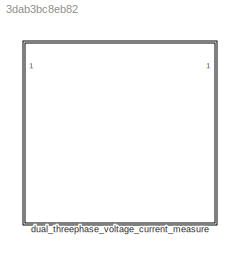
MODEL slx_3dab3bc8eb82
KIND library
CONFIG AbsTol = auto
CONFIG EnableMultiTasking = off
CONFIG FixedStep = auto
CONFIG MaxStep = auto
CONFIG MinStep = auto
CONFIG RelTol = 1e-3
CONFIG SampleTimeConstraint = Unconstrained
CONFIG SolverName = VariableStepAuto
CONFIG StartTime = 0.0
CONFIG StopTime = 10.0
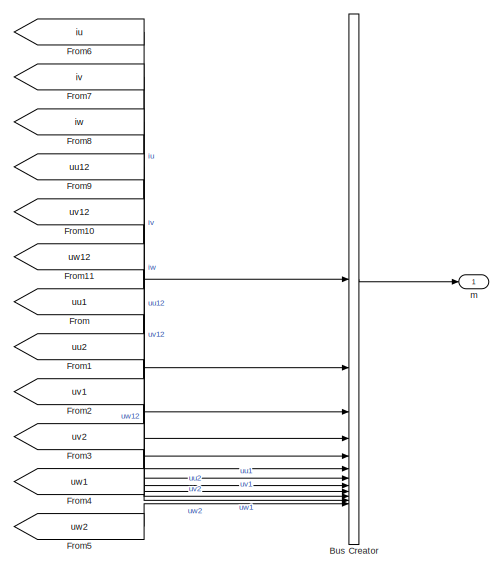
[diagram: dual_threephase_voltage_current_measure - part 1/3, top right region]
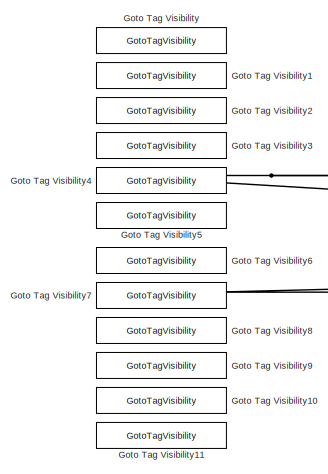
[diagram: dual_threephase_voltage_current_measure - part 2/3, top left region]
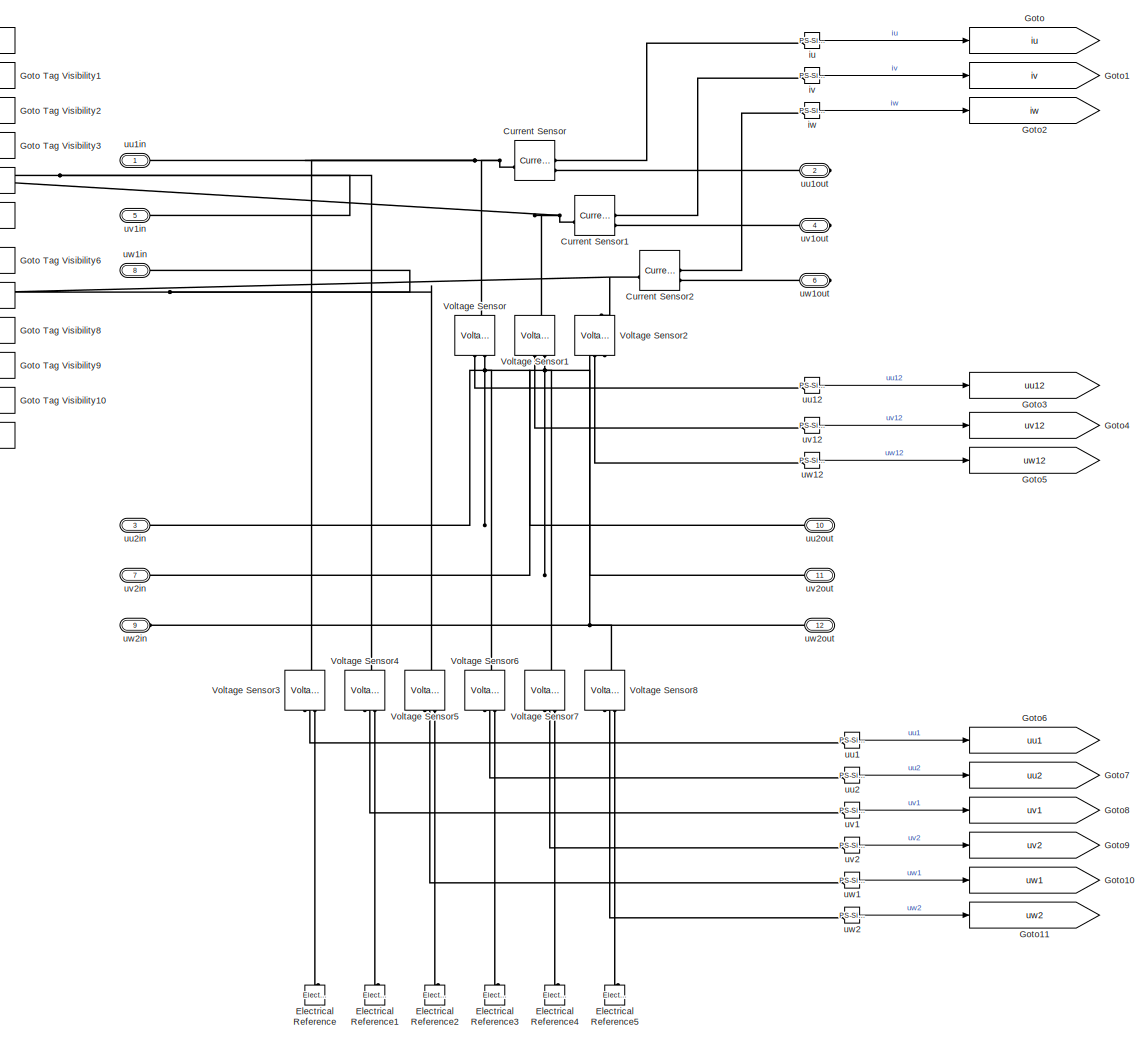
[diagram: dual_threephase_voltage_current_measure - part 3/3, center side, full height]
BLOCK [SubSystem] dual_threephase_voltage_current_measure
BLOCK [BusCreator] dual_threephase_voltage_current_measure/Bus Creator
  DisplayOption = bar
  InheritFromInputs = on
  Inputs = 12
BLOCK [Reference] dual_threephase_voltage_current_measure/Current Sensor  REF=fl_lib/Electrical/Electrical Sensors/Current Sensor
  SourceBlock = fl_lib/Electrical/Electrical Sensors/Current Sensor
  SourceType = Current Sensor
BLOCK [Reference] dual_threephase_voltage_current_measure/Current Sensor1  REF=fl_lib/Electrical/Electrical Sensors/Current Sensor
  SourceBlock = fl_lib/Electrical/Electrical Sensors/Current Sensor
  SourceType = Current Sensor
BLOCK [Reference] dual_threephase_voltage_current_measure/Current Sensor2  REF=fl_lib/Electrical/Electrical Sensors/Current Sensor
  SourceBlock = fl_lib/Electrical/Electrical Sensors/Current Sensor
  SourceType = Current Sensor
BLOCK [Reference] dual_threephase_voltage_current_measure/Electrical Reference  REF=fl_lib/Electrical/Electrical Elements/Electrical Reference
  NameLocation = right
  SourceBlock = fl_lib/Electrical/Electrical Elements/Electrical Reference
  SourceType = Electrical Reference
BLOCK [Reference] dual_threephase_voltage_current_measure/Electrical Reference1  REF=fl_lib/Electrical/Electrical Elements/Electrical Reference
  NameLocation = right
  SourceBlock = fl_lib/Electrical/Electrical Elements/Electrical Reference
  SourceType = Electrical Reference
BLOCK [Reference] dual_threephase_voltage_current_measure/Electrical Reference2  REF=fl_lib/Electrical/Electrical Elements/Electrical Reference
  NameLocation = right
  SourceBlock = fl_lib/Electrical/Electrical Elements/Electrical Reference
  SourceType = Electrical Reference
BLOCK [Reference] dual_threephase_voltage_current_measure/Electrical Reference3  REF=fl_lib/Electrical/Electrical Elements/Electrical Reference
  NameLocation = right
  SourceBlock = fl_lib/Electrical/Electrical Elements/Electrical Reference
  SourceType = Electrical Reference
BLOCK [Reference] dual_threephase_voltage_current_measure/Electrical Reference4  REF=fl_lib/Electrical/Electrical Elements/Electrical Reference
  NameLocation = right
  SourceBlock = fl_lib/Electrical/Electrical Elements/Electrical Reference
  SourceType = Electrical Reference
BLOCK [Reference] dual_threephase_voltage_current_measure/Electrical Reference5  REF=fl_lib/Electrical/Electrical Elements/Electrical Reference
  NameLocation = right
  SourceBlock = fl_lib/Electrical/Electrical Elements/Electrical Reference
  SourceType = Electrical Reference
BLOCK [From] dual_threephase_voltage_current_measure/From
  GotoTag = uu1
  TagVisibility = scoped
BLOCK [From] dual_threephase_voltage_current_measure/From1
  GotoTag = uu2
  TagVisibility = scoped
BLOCK [From] dual_threephase_voltage_current_measure/From10
  GotoTag = uv12
  TagVisibility = scoped
BLOCK [From] dual_threephase_voltage_current_measure/From11
  GotoTag = uw12
  TagVisibility = scoped
BLOCK [From] dual_threephase_voltage_current_measure/From2
  GotoTag = uv1
  TagVisibility = scoped
BLOCK [From] dual_threephase_voltage_current_measure/From3
  GotoTag = uv2
  TagVisibility = scoped
BLOCK [From] dual_threephase_voltage_current_measure/From4
  GotoTag = uw1
  TagVisibility = scoped
BLOCK [From] dual_threephase_voltage_current_measure/From5
  GotoTag = uw2
  TagVisibility = scoped
BLOCK [From] dual_threephase_voltage_current_measure/From6
  GotoTag = iu
  TagVisibility = scoped
BLOCK [From] dual_threephase_voltage_current_measure/From7
  GotoTag = iv
  TagVisibility = scoped
BLOCK [From] dual_threephase_voltage_current_measure/From8
  GotoTag = iw
  TagVisibility = scoped
BLOCK [From] dual_threephase_voltage_current_measure/From9
  GotoTag = uu12
  TagVisibility = scoped
BLOCK [Goto] dual_threephase_voltage_current_measure/Goto
  GotoTag = iu
  TagVisibility = scoped
BLOCK [GotoTagVisibility] dual_threephase_voltage_current_measure/Goto Tag Visibility
  GotoTag = iu
BLOCK [GotoTagVisibility] dual_threephase_voltage_current_measure/Goto Tag Visibility1
  GotoTag = iv
BLOCK [GotoTagVisibility] dual_threephase_voltage_current_measure/Goto Tag Visibility10
  GotoTag = uw1
BLOCK [GotoTagVisibility] dual_threephase_voltage_current_measure/Goto Tag Visibility11
  GotoTag = uw2
BLOCK [GotoTagVisibility] dual_threephase_voltage_current_measure/Goto Tag Visibility2
  GotoTag = iw
BLOCK [GotoTagVisibility] dual_threephase_voltage_current_measure/Goto Tag Visibility3
  GotoTag = uw12
BLOCK [GotoTagVisibility] dual_threephase_voltage_current_measure/Goto Tag Visibility4
  GotoTag = uv12
BLOCK [GotoTagVisibility] dual_threephase_voltage_current_measure/Goto Tag Visibility5
  GotoTag = uu12
BLOCK [GotoTagVisibility] dual_threephase_voltage_current_measure/Goto Tag Visibility6
  GotoTag = uu1
BLOCK [GotoTagVisibility] dual_threephase_voltage_current_measure/Goto Tag Visibility7
  GotoTag = uu2
BLOCK [GotoTagVisibility] dual_threephase_voltage_current_measure/Goto Tag Visibility8
  GotoTag = uv1
BLOCK [GotoTagVisibility] dual_threephase_voltage_current_measure/Goto Tag Visibility9
  GotoTag = uv2
BLOCK [Goto] dual_threephase_voltage_current_measure/Goto1
  GotoTag = iv
  TagVisibility = scoped
BLOCK [Goto] dual_threephase_voltage_current_measure/Goto10
  GotoTag = uw1
  TagVisibility = scoped
BLOCK [Goto] dual_threephase_voltage_current_measure/Goto11
  GotoTag = uw2
  TagVisibility = scoped
BLOCK [Goto] dual_threephase_voltage_current_measure/Goto2
  GotoTag = iw
  TagVisibility = scoped
BLOCK [Goto] dual_threephase_voltage_current_measure/Goto3
  GotoTag = uu12
  TagVisibility = scoped
BLOCK [Goto] dual_threephase_voltage_current_measure/Goto4
  GotoTag = uv12
  TagVisibility = scoped
BLOCK [Goto] dual_threephase_voltage_current_measure/Goto5
  GotoTag = uw12
  TagVisibility = scoped
BLOCK [Goto] dual_threephase_voltage_current_measure/Goto6
  GotoTag = uu1
  TagVisibility = scoped
BLOCK [Goto] dual_threephase_voltage_current_measure/Goto7
  GotoTag = uu2
  TagVisibility = scoped
BLOCK [Goto] dual_threephase_voltage_current_measure/Goto8
  GotoTag = uv1
  TagVisibility = scoped
BLOCK [Goto] dual_threephase_voltage_current_measure/Goto9
  GotoTag = uv2
  TagVisibility = scoped
BLOCK [Reference] dual_threephase_voltage_current_measure/Voltage Sensor  REF=fl_lib/Electrical/Electrical Sensors/Voltage Sensor
  NameLocation = right
  SourceBlock = fl_lib/Electrical/Electrical Sensors/Voltage Sensor
  SourceType = Voltage Sensor
BLOCK [Reference] dual_threephase_voltage_current_measure/Voltage Sensor1  REF=fl_lib/Electrical/Electrical Sensors/Voltage Sensor
  NameLocation = right
  SourceBlock = fl_lib/Electrical/Electrical Sensors/Voltage Sensor
  SourceType = Voltage Sensor
BLOCK [Reference] dual_threephase_voltage_current_measure/Voltage Sensor2  REF=fl_lib/Electrical/Electrical Sensors/Voltage Sensor
  NameLocation = right
  SourceBlock = fl_lib/Electrical/Electrical Sensors/Voltage Sensor
  SourceType = Voltage Sensor
BLOCK [Reference] dual_threephase_voltage_current_measure/Voltage Sensor3  REF=fl_lib/Electrical/Electrical Sensors/Voltage Sensor
  NameLocation = right
  SourceBlock = fl_lib/Electrical/Electrical Sensors/Voltage Sensor
  SourceType = Voltage Sensor
BLOCK [Reference] dual_threephase_voltage_current_measure/Voltage Sensor4  REF=fl_lib/Electrical/Electrical Sensors/Voltage Sensor
  NameLocation = right
  SourceBlock = fl_lib/Electrical/Electrical Sensors/Voltage Sensor
  SourceType = Voltage Sensor
BLOCK [Reference] dual_threephase_voltage_current_measure/Voltage Sensor5  REF=fl_lib/Electrical/Electrical Sensors/Voltage Sensor
  NameLocation = right
  SourceBlock = fl_lib/Electrical/Electrical Sensors/Voltage Sensor
  SourceType = Voltage Sensor
BLOCK [Reference] dual_threephase_voltage_current_measure/Voltage Sensor6  REF=fl_lib/Electrical/Electrical Sensors/Voltage Sensor
  NameLocation = right
  SourceBlock = fl_lib/Electrical/Electrical Sensors/Voltage Sensor
  SourceType = Voltage Sensor
BLOCK [Reference] dual_threephase_voltage_current_measure/Voltage Sensor7  REF=fl_lib/Electrical/Electrical Sensors/Voltage Sensor
  NameLocation = right
  SourceBlock = fl_lib/Electrical/Electrical Sensors/Voltage Sensor
  SourceType = Voltage Sensor
BLOCK [Reference] dual_threephase_voltage_current_measure/Voltage Sensor8  REF=fl_lib/Electrical/Electrical Sensors/Voltage Sensor
  NameLocation = right
  SourceBlock = fl_lib/Electrical/Electrical Sensors/Voltage Sensor
  SourceType = Voltage Sensor
BLOCK [Reference] dual_threephase_voltage_current_measure/iu  REF=nesl_utility/PS-Simulink
Converter
  SourceBlock = nesl_utility/PS-Simulink\nConverter
  SourceType = PS-Simulink\nConverter
BLOCK [Reference] dual_threephase_voltage_current_measure/iv  REF=nesl_utility/PS-Simulink
Converter
  SourceBlock = nesl_utility/PS-Simulink\nConverter
  SourceType = PS-Simulink\nConverter
BLOCK [Reference] dual_threephase_voltage_current_measure/iw  REF=nesl_utility/PS-Simulink
Converter
  SourceBlock = nesl_utility/PS-Simulink\nConverter
  SourceType = PS-Simulink\nConverter
BLOCK [Outport] dual_threephase_voltage_current_measure/m
BLOCK [Reference] dual_threephase_voltage_current_measure/uu1  REF=nesl_utility/PS-Simulink
Converter
  SourceBlock = nesl_utility/PS-Simulink\nConverter
  SourceType = PS-Simulink\nConverter
BLOCK [Reference] dual_threephase_voltage_current_measure/uu12  REF=nesl_utility/PS-Simulink
Converter
  SourceBlock = nesl_utility/PS-Simulink\nConverter
  SourceType = PS-Simulink\nConverter
BLOCK [PMIOPort] dual_threephase_voltage_current_measure/uu1in
  Side = Left
BLOCK [PMIOPort] dual_threephase_voltage_current_measure/uu1out
  Port = 2
  Side = Right
BLOCK [Reference] dual_threephase_voltage_current_measure/uu2  REF=nesl_utility/PS-Simulink
Converter
  SourceBlock = nesl_utility/PS-Simulink\nConverter
  SourceType = PS-Simulink\nConverter
BLOCK [PMIOPort] dual_threephase_voltage_current_measure/uu2in
  Port = 3
  Side = Left
BLOCK [PMIOPort] dual_threephase_voltage_current_measure/uu2out
  Port = 10
  Side = Right
BLOCK [Reference] dual_threephase_voltage_current_measure/uv1  REF=nesl_utility/PS-Simulink
Converter
  SourceBlock = nesl_utility/PS-Simulink\nConverter
  SourceType = PS-Simulink\nConverter
BLOCK [Reference] dual_threephase_voltage_current_measure/uv12  REF=nesl_utility/PS-Simulink
Converter
  SourceBlock = nesl_utility/PS-Simulink\nConverter
  SourceType = PS-Simulink\nConverter
BLOCK [PMIOPort] dual_threephase_voltage_current_measure/uv1in
  Port = 5
  Side = Left
BLOCK [PMIOPort] dual_threephase_voltage_current_measure/uv1out
  Port = 4
  Side = Right
BLOCK [Reference] dual_threephase_voltage_current_measure/uv2  REF=nesl_utility/PS-Simulink
Converter
  SourceBlock = nesl_utility/PS-Simulink\nConverter
  SourceType = PS-Simulink\nConverter
BLOCK [PMIOPort] dual_threephase_voltage_current_measure/uv2in
  Port = 7
  Side = Left
BLOCK [PMIOPort] dual_threephase_voltage_current_measure/uv2out
  Port = 11
  Side = Right
BLOCK [Reference] dual_threephase_voltage_current_measure/uw1  REF=nesl_utility/PS-Simulink
Converter
  SourceBlock = nesl_utility/PS-Simulink\nConverter
  SourceType = PS-Simulink\nConverter
BLOCK [Reference] dual_threephase_voltage_current_measure/uw12  REF=nesl_utility/PS-Simulink
Converter
  SourceBlock = nesl_utility/PS-Simulink\nConverter
  SourceType = PS-Simulink\nConverter
BLOCK [PMIOPort] dual_threephase_voltage_current_measure/uw1in
  Port = 8
  Side = Left
BLOCK [PMIOPort] dual_threephase_voltage_current_measure/uw1out
  Port = 6
  Side = Right
BLOCK [Reference] dual_threephase_voltage_current_measure/uw2  REF=nesl_utility/PS-Simulink
Converter
  SourceBlock = nesl_utility/PS-Simulink\nConverter
  SourceType = PS-Simulink\nConverter
BLOCK [PMIOPort] dual_threephase_voltage_current_measure/uw2in
  Port = 9
  Side = Left
BLOCK [PMIOPort] dual_threephase_voltage_current_measure/uw2out
  Port = 12
  Side = Right
LINE dual_threephase_voltage_current_measure/Bus Creator:1 -> dual_threephase_voltage_current_measure/m:1
LINE dual_threephase_voltage_current_measure/From10:1 -> dual_threephase_voltage_current_measure/Bus Creator:5
LINE dual_threephase_voltage_current_measure/From11:1 -> dual_threephase_voltage_current_measure/Bus Creator:6
LINE dual_threephase_voltage_current_measure/From1:1 -> dual_threephase_voltage_current_measure/Bus Creator:8
LINE dual_threephase_voltage_current_measure/From2:1 -> dual_threephase_voltage_current_measure/Bus Creator:9
LINE dual_threephase_voltage_current_measure/From3:1 -> dual_threephase_voltage_current_measure/Bus Creator:10
LINE dual_threephase_voltage_current_measure/From4:1 -> dual_threephase_voltage_current_measure/Bus Creator:11
LINE dual_threephase_voltage_current_measure/From5:1 -> dual_threephase_voltage_current_measure/Bus Creator:12
LINE dual_threephase_voltage_current_measure/From6:1 -> dual_threephase_voltage_current_measure/Bus Creator:1
LINE dual_threephase_voltage_current_measure/From7:1 -> dual_threephase_voltage_current_measure/Bus Creator:2
LINE dual_threephase_voltage_current_measure/From8:1 -> dual_threephase_voltage_current_measure/Bus Creator:3
LINE dual_threephase_voltage_current_measure/From9:1 -> dual_threephase_voltage_current_measure/Bus Creator:4
LINE dual_threephase_voltage_current_measure/From:1 -> dual_threephase_voltage_current_measure/Bus Creator:7
LINE dual_threephase_voltage_current_measure/iu:1 -> dual_threephase_voltage_current_measure/Goto:1
LINE dual_threephase_voltage_current_measure/iv:1 -> dual_threephase_voltage_current_measure/Goto1:1
LINE dual_threephase_voltage_current_measure/iw:1 -> dual_threephase_voltage_current_measure/Goto2:1
LINE dual_threephase_voltage_current_measure/uu12:1 -> dual_threephase_voltage_current_measure/Goto3:1
LINE dual_threephase_voltage_current_measure/uu1:1 -> dual_threephase_voltage_current_measure/Goto6:1
LINE dual_threephase_voltage_current_measure/uu2:1 -> dual_threephase_voltage_current_measure/Goto7:1
LINE dual_threephase_voltage_current_measure/uv12:1 -> dual_threephase_voltage_current_measure/Goto4:1
LINE dual_threephase_voltage_current_measure/uv1:1 -> dual_threephase_voltage_current_measure/Goto8:1
LINE dual_threephase_voltage_current_measure/uv2:1 -> dual_threephase_voltage_current_measure/Goto9:1
LINE dual_threephase_voltage_current_measure/uw12:1 -> dual_threephase_voltage_current_measure/Goto5:1
LINE dual_threephase_voltage_current_measure/uw1:1 -> dual_threephase_voltage_current_measure/Goto10:1
LINE dual_threephase_voltage_current_measure/uw2:1 -> dual_threephase_voltage_current_measure/Goto11:1
PNET net1: dual_threephase_voltage_current_measure/Current Sensor1:LConn1 -- dual_threephase_voltage_current_measure/Voltage Sensor1:LConn1 -- dual_threephase_voltage_current_measure/Voltage Sensor4:LConn1 -- dual_threephase_voltage_current_measure/uv1in:RConn1
PLINE dual_threephase_voltage_current_measure/Current Sensor1:RConn1 -- dual_threephase_voltage_current_measure/iv:LConn1
PLINE dual_threephase_voltage_current_measure/Current Sensor1:RConn2 -- dual_threephase_voltage_current_measure/uv1out:RConn1
PNET net2: dual_threephase_voltage_current_measure/Current Sensor2:LConn1 -- dual_threephase_voltage_current_measure/Voltage Sensor2:LConn1 -- dual_threephase_voltage_current_measure/Voltage Sensor5:LConn1 -- dual_threephase_voltage_current_measure/uw1in:RConn1
PLINE dual_threephase_voltage_current_measure/Current Sensor2:RConn1 -- dual_threephase_voltage_current_measure/iw:LConn1
PLINE dual_threephase_voltage_current_measure/Current Sensor2:RConn2 -- dual_threephase_voltage_current_measure/uw1out:RConn1
PNET net3: dual_threephase_voltage_current_measure/Current Sensor:LConn1 -- dual_threephase_voltage_current_measure/Voltage Sensor3:LConn1 -- dual_threephase_voltage_current_measure/Voltage Sensor:LConn1 -- dual_threephase_voltage_current_measure/uu1in:RConn1
PLINE dual_threephase_voltage_current_measure/Current Sensor:RConn1 -- dual_threephase_voltage_current_measure/iu:LConn1
PLINE dual_threephase_voltage_current_measure/Current Sensor:RConn2 -- dual_threephase_voltage_current_measure/uu1out:RConn1
PLINE dual_threephase_voltage_current_measure/Electrical Reference1:LConn1 -- dual_threephase_voltage_current_measure/Voltage Sensor4:RConn2
PLINE dual_threephase_voltage_current_measure/Electrical Reference2:LConn1 -- dual_threephase_voltage_current_measure/Voltage Sensor5:RConn2
PLINE dual_threephase_voltage_current_measure/Electrical Reference3:LConn1 -- dual_threephase_voltage_current_measure/Voltage Sensor6:RConn2
PLINE dual_threephase_voltage_current_measure/Electrical Reference4:LConn1 -- dual_threephase_voltage_current_measure/Voltage Sensor7:RConn2
PLINE dual_threephase_voltage_current_measure/Electrical Reference5:LConn1 -- dual_threephase_voltage_current_measure/Voltage Sensor8:RConn2
PLINE dual_threephase_voltage_current_measure/Electrical Reference:LConn1 -- dual_threephase_voltage_current_measure/Voltage Sensor3:RConn2
PLINE dual_threephase_voltage_current_measure/Voltage Sensor1:RConn1 -- dual_threephase_voltage_current_measure/uv12:LConn1
PNET net4: dual_threephase_voltage_current_measure/Voltage Sensor1:RConn2 -- dual_threephase_voltage_current_measure/Voltage Sensor7:LConn1 -- dual_threephase_voltage_current_measure/uv2in:RConn1 -- dual_threephase_voltage_current_measure/uv2out:RConn1
PLINE dual_threephase_voltage_current_measure/Voltage Sensor2:RConn1 -- dual_threephase_voltage_current_measure/uw12:LConn1
PNET net5: dual_threephase_voltage_current_measure/Voltage Sensor2:RConn2 -- dual_threephase_voltage_current_measure/Voltage Sensor8:LConn1 -- dual_threephase_voltage_current_measure/uw2in:RConn1 -- dual_threephase_voltage_current_measure/uw2out:RConn1
PLINE dual_threephase_voltage_current_measure/Voltage Sensor3:RConn1 -- dual_threephase_voltage_current_measure/uu1:LConn1
PLINE dual_threephase_voltage_current_measure/Voltage Sensor4:RConn1 -- dual_threephase_voltage_current_measure/uv1:LConn1
PLINE dual_threephase_voltage_current_measure/Voltage Sensor5:RConn1 -- dual_threephase_voltage_current_measure/uw1:LConn1
PNET net6: dual_threephase_voltage_current_measure/Voltage Sensor6:LConn1 -- dual_threephase_voltage_current_measure/Voltage Sensor:RConn2 -- dual_threephase_voltage_current_measure/uu2in:RConn1 -- dual_threephase_voltage_current_measure/uu2out:RConn1
PLINE dual_threephase_voltage_current_measure/Voltage Sensor6:RConn1 -- dual_threephase_voltage_current_measure/uu2:LConn1
PLINE dual_threephase_voltage_current_measure/Voltage Sensor7:RConn1 -- dual_threephase_voltage_current_measure/uv2:LConn1
PLINE dual_threephase_voltage_current_measure/Voltage Sensor8:RConn1 -- dual_threephase_voltage_current_measure/uw2:LConn1
PLINE dual_threephase_voltage_current_measure/Voltage Sensor:RConn1 -- dual_threephase_voltage_current_measure/uu12:LConn1
note: PNET lines group multi-terminal physical nets as a canonical sorted terminal list (undirected conserving connections); 2-terminal nets keep the pairwise PLINE form
